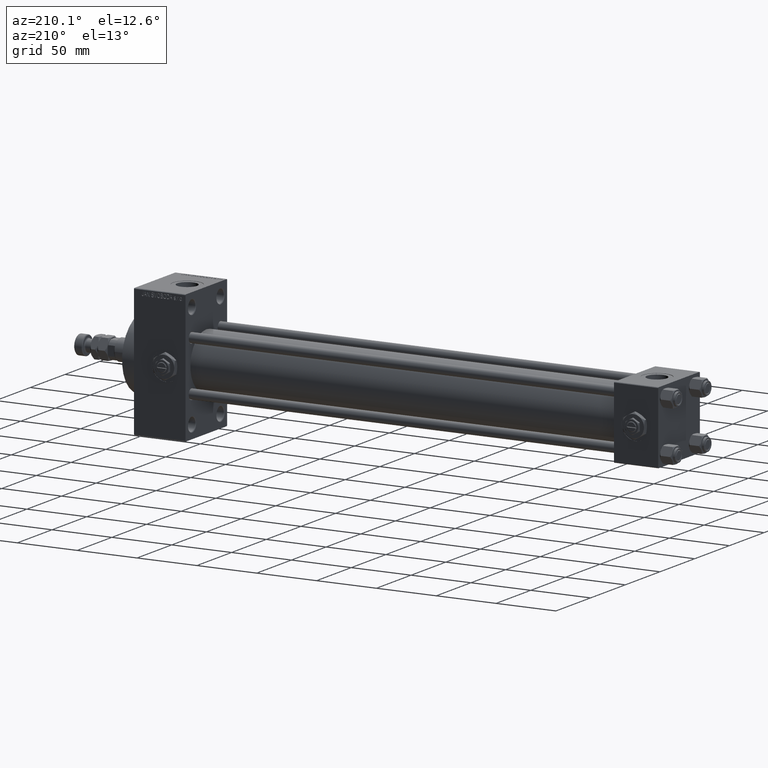
[diagram: clean part render]
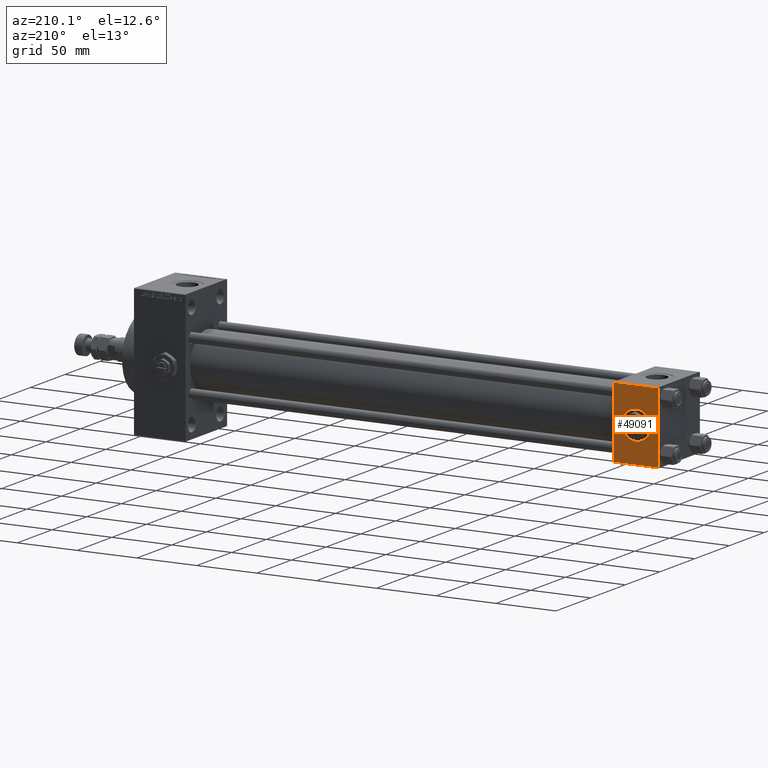
[diagram: same view with one face highlighted and labeled with its STEP entity id]
A machine part, auxiliary view. The second image highlights one B-rep face of the part: STEP entity #49091.
In plain terms, the highlighted planar face has unit normal (0, 1, 0).
Its self-contained STEP definition (entity closure, byte-faithful):
#1021 = EDGE_CURVE ( 'NONE', #6474, #12693, #35095, .T. ) ;
#1866 = DIRECTION ( 'NONE',  ( 0.000000000000000000, -0.000000000000000000, 1.000000000000000000 ) ) ;
#2589 = AXIS2_PLACEMENT_3D ( 'NONE', #18407, #19172, #14785 ) ;
#2987 = VERTEX_POINT ( 'NONE', #18593 ) ;
#3602 = ORIENTED_EDGE ( 'NONE', *, *, #22271, .T. ) ;
#4164 = ORIENTED_EDGE ( 'NONE', *, *, #21723, .F. ) ;
#6474 = VERTEX_POINT ( 'NONE', #48057 ) ;
#6492 = DIRECTION ( 'NONE',  ( -1.000000000000000000, 0.000000000000000000, 0.000000000000000000 ) ) ;
#6948 = VECTOR ( 'NONE', #35025, 1000.000000000000000 ) ;
#7206 = DIRECTION ( 'NONE',  ( 1.000000000000000000, 0.000000000000000000, 0.000000000000000000 ) ) ;
#7980 = CARTESIAN_POINT ( 'NONE',  ( 37.00000000000000000, 29.99999999999999289, 29.50000000000000000 ) ) ;
#9371 = LINE ( 'NONE', #32574, #41404 ) ;
#9602 = FACE_OUTER_BOUND ( 'NONE', #15441, .T. ) ;
#12693 = VERTEX_POINT ( 'NONE', #36438 ) ;
#14785 = DIRECTION ( 'NONE',  ( 0.000000000000000000, 0.000000000000000000, 1.000000000000000000 ) ) ;
#15441 = EDGE_LOOP ( 'NONE', ( #39199, #47487, #32034, #3602 ) ) ;
#18407 = CARTESIAN_POINT ( 'NONE',  ( 18.50000000000000000, 29.99999999999999289, 0.000000000000000000 ) ) ;
#18593 = CARTESIAN_POINT ( 'NONE',  ( 37.00000000000000000, 29.99999999999999289, 29.50000000000000000 ) ) ;
#19172 = DIRECTION ( 'NONE',  ( 0.000000000000000000, 1.000000000000000000, 0.000000000000000000 ) ) ;
#20141 = EDGE_LOOP ( 'NONE', ( #4164, #29841 ) ) ;
#21723 = EDGE_CURVE ( 'NONE', #23801, #34398, #32758, .T. ) ;
#22271 = EDGE_CURVE ( 'NONE', #42733, #2987, #50497, .T. ) ;
#23801 = VERTEX_POINT ( 'NONE', #49045 ) ;
#27707 = DIRECTION ( 'NONE',  ( 0.000000000000000000, 1.000000000000000000, 0.000000000000000000 ) ) ;
#28892 = VECTOR ( 'NONE', #6492, 1000.000000000000000 ) ;
#29701 = CIRCLE ( 'NONE', #2589, 12.00000000000000178 ) ;
#29841 = ORIENTED_EDGE ( 'NONE', *, *, #32250, .F. ) ;
#30346 = CARTESIAN_POINT ( 'NONE',  ( 18.50000000000000000, 29.99999999999999289, -12.00000000000000178 ) ) ;
#32034 = ORIENTED_EDGE ( 'NONE', *, *, #43245, .F. ) ;
#32250 = EDGE_CURVE ( 'NONE', #34398, #23801, #29701, .T. ) ;
#32574 = CARTESIAN_POINT ( 'NONE',  ( 37.00000000000000000, 29.99999999999999289, 30.00000000000000000 ) ) ;
#32758 = CIRCLE ( 'NONE', #40970, 12.00000000000000178 ) ;
#33819 = PLANE ( 'NONE',  #42701 ) ;
#34398 = VERTEX_POINT ( 'NONE', #30346 ) ;
#35025 = DIRECTION ( 'NONE',  ( 0.000000000000000000, 0.000000000000000000, -1.000000000000000000 ) ) ;
#35095 = LINE ( 'NONE', #46173, #28892 ) ;
#36438 = CARTESIAN_POINT ( 'NONE',  ( 0.000000000000000000, 29.99999999999999289, -29.50000000000000000 ) ) ;
#36454 = DIRECTION ( 'NONE',  ( 0.000000000000000000, 0.000000000000000000, 1.000000000000000000 ) ) ;
#36697 = DIRECTION ( 'NONE',  ( -0.000000000000000000, 1.000000000000000000, 0.000000000000000000 ) ) ;
#37268 = EDGE_CURVE ( 'NONE', #2987, #6474, #9371, .T. ) ;
#39199 = ORIENTED_EDGE ( 'NONE', *, *, #37268, .T. ) ;
#40970 = AXIS2_PLACEMENT_3D ( 'NONE', #48036, #27707, #36454 ) ;
#41404 = VECTOR ( 'NONE', #44923, 1000.000000000000000 ) ;
#42701 = AXIS2_PLACEMENT_3D ( 'NONE', #45418, #36697, #1866 ) ;
#42733 = VERTEX_POINT ( 'NONE', #48079 ) ;
#42752 = CARTESIAN_POINT ( 'NONE',  ( 0.000000000000000000, 29.99999999999999289, 30.00000000000000000 ) ) ;
#43245 = EDGE_CURVE ( 'NONE', #42733, #12693, #46622, .T. ) ;
#44302 = VECTOR ( 'NONE', #7206, 1000.000000000000000 ) ;
#44923 = DIRECTION ( 'NONE',  ( 0.000000000000000000, 0.000000000000000000, -1.000000000000000000 ) ) ;
#45418 = CARTESIAN_POINT ( 'NONE',  ( 37.00000000000000000, 29.99999999999999289, 30.00000000000000000 ) ) ;
#46173 = CARTESIAN_POINT ( 'NONE',  ( 37.00000000000000000, 29.99999999999999289, -29.50000000000000000 ) ) ;
#46622 = LINE ( 'NONE', #42752, #6948 ) ;
#47487 = ORIENTED_EDGE ( 'NONE', *, *, #1021, .T. ) ;
#48036 = CARTESIAN_POINT ( 'NONE',  ( 18.50000000000000000, 29.99999999999999289, 0.000000000000000000 ) ) ;
#48057 = CARTESIAN_POINT ( 'NONE',  ( 37.00000000000000000, 29.99999999999999289, -29.50000000000000000 ) ) ;
#48079 = CARTESIAN_POINT ( 'NONE',  ( 0.000000000000000000, 29.99999999999999289, 29.50000000000000000 ) ) ;
#49045 = CARTESIAN_POINT ( 'NONE',  ( 18.50000000000000000, 29.99999999999999289, 12.00000000000000178 ) ) ;
#49091 = ADVANCED_FACE ( 'NONE', ( #49525, #9602 ), #33819, .T. ) ;
#49525 = FACE_BOUND ( 'NONE', #20141, .T. ) ;
#50497 = LINE ( 'NONE', #7980, #44302 ) ;